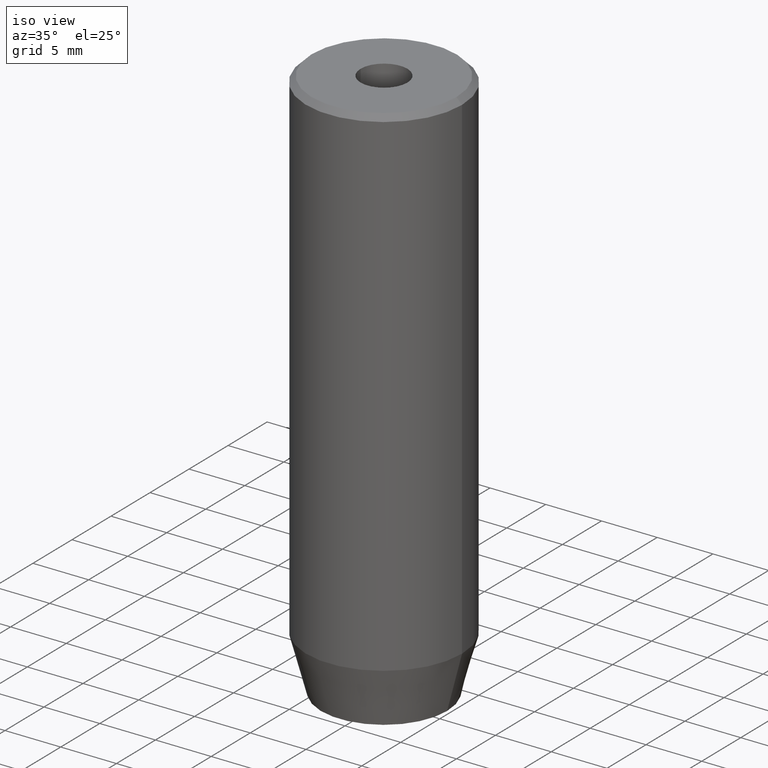
[diagram: clean part render]
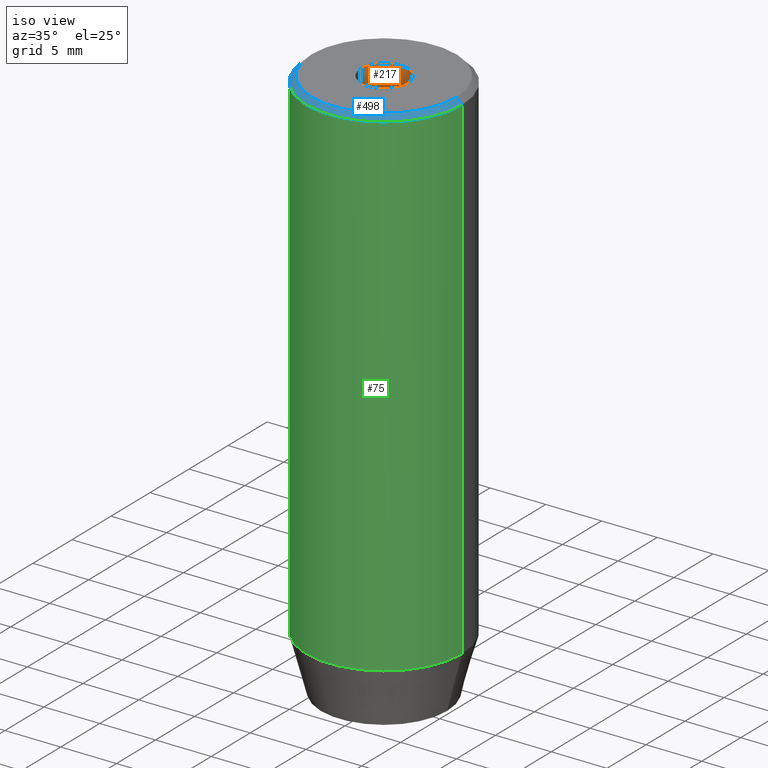
[diagram: same view with three faces highlighted in distinct colors, each labeled with its STEP entity id]
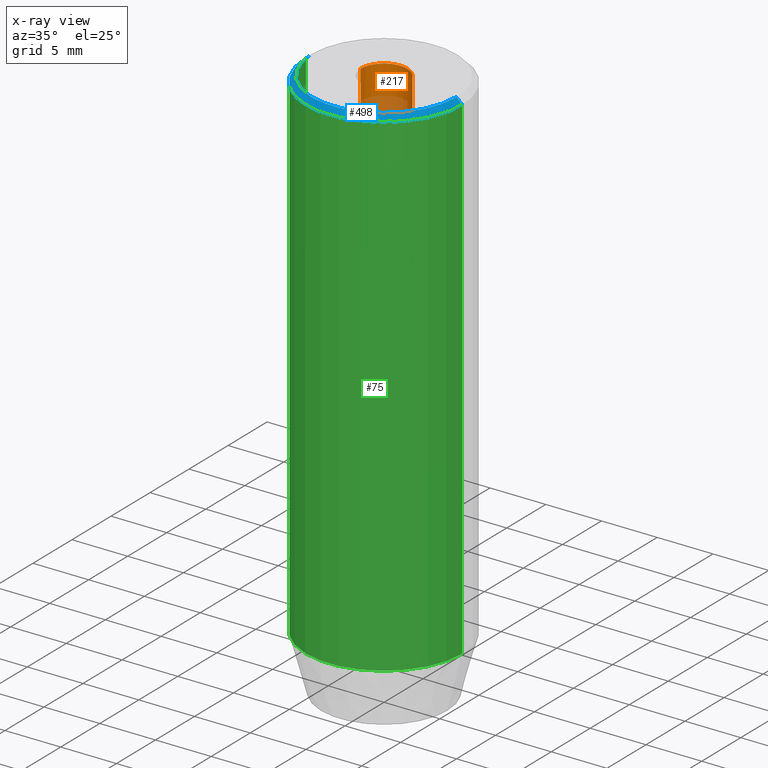
[diagram: x-ray of the same camera — body ghosted, the three highlighted faces saturated]
A machine part, iso view with three faces highlighted in distinct colors.
The next image is the same camera in x-ray (body ghosted, the three faces saturated) — at least one of them is partly hidden behind the body in this view.
Their STEP definitions:

[orange] entity #217 — the highlighted cylindrical surface (edge-blend (fillet) strip) has radius 2.1 mm, axis along (-0, -0, 1).
#10 = CARTESIAN_POINT ( 'NONE',  ( 2.099999999999997868, 0.000000000000000000, 0.000000000000000000 ) ) ;
#25 = DIRECTION ( 'NONE',  ( 1.000000000000000000, 0.000000000000000000, 0.000000000000000000 ) ) ;
#26 = ORIENTED_EDGE ( 'NONE', *, *, #364, .F. ) ;
#44 = VERTEX_POINT ( 'NONE', #253 ) ;
#48 = VERTEX_POINT ( 'NONE', #439 ) ;
#57 = VECTOR ( 'NONE', #93, 1000.000000000000000 ) ;
#74 = CARTESIAN_POINT ( 'NONE',  ( 0.000000000000000000, 0.000000000000000000, -15.00000000000000000 ) ) ;
#78 = DIRECTION ( 'NONE',  ( 1.000000000000000000, 0.000000000000000000, 0.000000000000000000 ) ) ;
#93 = DIRECTION ( 'NONE',  ( -0.000000000000000000, -0.000000000000000000, 1.000000000000000000 ) ) ;
#99 = DIRECTION ( 'NONE',  ( 1.000000000000000000, 0.000000000000000000, 0.000000000000000000 ) ) ;
#116 = CARTESIAN_POINT ( 'NONE',  ( -2.099999999999997868, 2.571758278209438999E-16, 0.000000000000000000 ) ) ;
#142 = FACE_OUTER_BOUND ( 'NONE', #263, .T. ) ;
#143 = AXIS2_PLACEMENT_3D ( 'NONE', #74, #487, #78 ) ;
#147 = LINE ( 'NONE', #10, #57 ) ;
#159 = DIRECTION ( 'NONE',  ( -0.000000000000000000, -0.000000000000000000, 1.000000000000000000 ) ) ;
#191 = CYLINDRICAL_SURFACE ( 'NONE', #435, 2.099999999999997868 ) ;
#217 = ADVANCED_FACE ( 'NONE', ( #142 ), #191, .F. ) ;
#243 = DIRECTION ( 'NONE',  ( -0.000000000000000000, -0.000000000000000000, 1.000000000000000000 ) ) ;
#250 = LINE ( 'NONE', #116, #502 ) ;
#253 = CARTESIAN_POINT ( 'NONE',  ( 2.099999999999998757, 0.000000000000000000, -1.990051048614449116E-16 ) ) ;
#263 = EDGE_LOOP ( 'NONE', ( #489, #26, #292, #320 ) ) ;
#275 = VERTEX_POINT ( 'NONE', #398 ) ;
#292 = ORIENTED_EDGE ( 'NONE', *, *, #522, .T. ) ;
#316 = AXIS2_PLACEMENT_3D ( 'NONE', #475, #243, #25 ) ;
#320 = ORIENTED_EDGE ( 'NONE', *, *, #547, .T. ) ;
#324 = EDGE_CURVE ( 'NONE', #48, #553, #250, .T. ) ;
#364 = EDGE_CURVE ( 'NONE', #275, #48, #385, .T. ) ;
#385 = CIRCLE ( 'NONE', #143, 2.099999999999996980 ) ;
#398 = CARTESIAN_POINT ( 'NONE',  ( 2.099999999999996980, 0.000000000000000000, -15.00000000000000000 ) ) ;
#428 = CARTESIAN_POINT ( 'NONE',  ( -2.099999999999998757, 2.571758278209439985E-16, -1.990051048614449116E-16 ) ) ;
#435 = AXIS2_PLACEMENT_3D ( 'NONE', #470, #508, #99 ) ;
#439 = CARTESIAN_POINT ( 'NONE',  ( -2.099999999999996980, 2.571758278209438013E-16, -15.00000000000000000 ) ) ;
#449 = CIRCLE ( 'NONE', #316, 2.099999999999998757 ) ;
#470 = CARTESIAN_POINT ( 'NONE',  ( 0.000000000000000000, 0.000000000000000000, 0.000000000000000000 ) ) ;
#475 = CARTESIAN_POINT ( 'NONE',  ( 0.000000000000000000, 0.000000000000000000, -1.990051048614449116E-16 ) ) ;
#487 = DIRECTION ( 'NONE',  ( -0.000000000000000000, -0.000000000000000000, 1.000000000000000000 ) ) ;
#489 = ORIENTED_EDGE ( 'NONE', *, *, #324, .F. ) ;
#502 = VECTOR ( 'NONE', #159, 1000.000000000000000 ) ;
#508 = DIRECTION ( 'NONE',  ( -0.000000000000000000, -0.000000000000000000, 1.000000000000000000 ) ) ;
#522 = EDGE_CURVE ( 'NONE', #275, #44, #147, .T. ) ;
#547 = EDGE_CURVE ( 'NONE', #44, #553, #449, .T. ) ;
#553 = VERTEX_POINT ( 'NONE', #428 ) ;

[blue] entity #498 — the highlighted conical surface has half-angle 45 deg.
#2 = EDGE_LOOP ( 'NONE', ( #227, #334, #571, #514 ) ) ;
#56 = AXIS2_PLACEMENT_3D ( 'NONE', #241, #418, #559 ) ;
#66 = CARTESIAN_POINT ( 'NONE',  ( -6.499999999999999112, 0.000000000000000000, 0.000000000000000000 ) ) ;
#84 = EDGE_CURVE ( 'NONE', #267, #376, #218, .T. ) ;
#96 = EDGE_CURVE ( 'NONE', #376, #517, #251, .T. ) ;
#115 = EDGE_CURVE ( 'NONE', #410, #267, #530, .T. ) ;
#138 = EDGE_CURVE ( 'NONE', #410, #517, #150, .T. ) ;
#139 = CARTESIAN_POINT ( 'NONE',  ( 0.000000000000000000, 0.000000000000000000, -0.5000000000000048850 ) ) ;
#146 = DIRECTION ( 'NONE',  ( 0.000000000000000000, 0.000000000000000000, -1.000000000000000000 ) ) ;
#150 = LINE ( 'NONE', #66, #359 ) ;
#164 = CARTESIAN_POINT ( 'NONE',  ( -6.499999999999999112, 0.000000000000000000, 0.000000000000000000 ) ) ;
#176 = CARTESIAN_POINT ( 'NONE',  ( 0.000000000000000000, 0.000000000000000000, 0.000000000000000000 ) ) ;
#218 = LINE ( 'NONE', #492, #586 ) ;
#225 = AXIS2_PLACEMENT_3D ( 'NONE', #176, #543, #268 ) ;
#227 = ORIENTED_EDGE ( 'NONE', *, *, #84, .F. ) ;
#229 = AXIS2_PLACEMENT_3D ( 'NONE', #139, #146, #377 ) ;
#241 = CARTESIAN_POINT ( 'NONE',  ( 0.000000000000000000, 0.000000000000000000, 0.000000000000000000 ) ) ;
#251 = CIRCLE ( 'NONE', #229, 7.000000000000000000 ) ;
#267 = VERTEX_POINT ( 'NONE', #533 ) ;
#268 = DIRECTION ( 'NONE',  ( -1.000000000000000000, 0.000000000000000000, 0.000000000000000000 ) ) ;
#334 = ORIENTED_EDGE ( 'NONE', *, *, #115, .F. ) ;
#359 = VECTOR ( 'NONE', #554, 1000.000000000000000 ) ;
#375 = CARTESIAN_POINT ( 'NONE',  ( -7.000000000000000000, 8.572527594031473190E-16, -0.5000000000000048850 ) ) ;
#376 = VERTEX_POINT ( 'NONE', #521 ) ;
#377 = DIRECTION ( 'NONE',  ( 1.000000000000000000, 0.000000000000000000, 0.000000000000000000 ) ) ;
#404 = FACE_OUTER_BOUND ( 'NONE', #2, .T. ) ;
#410 = VERTEX_POINT ( 'NONE', #164 ) ;
#418 = DIRECTION ( 'NONE',  ( -0.000000000000000000, -0.000000000000000000, 1.000000000000000000 ) ) ;
#492 = CARTESIAN_POINT ( 'NONE',  ( 6.499999999999999112, 7.960204194457794491E-16, 0.000000000000000000 ) ) ;
#498 = ADVANCED_FACE ( 'NONE', ( #404 ), #587, .T. ) ;
#514 = ORIENTED_EDGE ( 'NONE', *, *, #96, .F. ) ;
#517 = VERTEX_POINT ( 'NONE', #375 ) ;
#521 = CARTESIAN_POINT ( 'NONE',  ( 7.000000000000000000, 0.000000000000000000, -0.5000000000000048850 ) ) ;
#530 = CIRCLE ( 'NONE', #56, 6.499999999999999112 ) ;
#533 = CARTESIAN_POINT ( 'NONE',  ( 6.499999999999999112, 8.266365894244633347E-16, 0.000000000000000000 ) ) ;
#543 = DIRECTION ( 'NONE',  ( 0.000000000000000000, 0.000000000000000000, -1.000000000000000000 ) ) ;
#554 = DIRECTION ( 'NONE',  ( -0.7071067811865450192, 0.000000000000000000, -0.7071067811865500152 ) ) ;
#559 = DIRECTION ( 'NONE',  ( 1.000000000000000000, 0.000000000000000000, 0.000000000000000000 ) ) ;
#571 = ORIENTED_EDGE ( 'NONE', *, *, #138, .T. ) ;
#580 = DIRECTION ( 'NONE',  ( 0.7071067811865450192, 8.659560562354902043E-17, -0.7071067811865500152 ) ) ;
#586 = VECTOR ( 'NONE', #580, 1000.000000000000000 ) ;
#587 = CONICAL_SURFACE ( 'NONE', #225, 6.499999999999999112, 0.7853981633974447263 ) ;

[green] entity #75 — the highlighted cylindrical surface (partial cylindrical patch) has radius 7 mm, axis along (-0, -0, 1).
#75 = ADVANCED_FACE ( 'NONE', ( #213 ), #308, .T. ) ;
#81 = DIRECTION ( 'NONE',  ( 1.000000000000000000, 0.000000000000000000, 0.000000000000000000 ) ) ;
#96 = EDGE_CURVE ( 'NONE', #376, #517, #251, .T. ) ;
#98 = ORIENTED_EDGE ( 'NONE', *, *, #290, .T. ) ;
#101 = CARTESIAN_POINT ( 'NONE',  ( -7.000000000000000000, 8.572527594031473190E-16, 0.000000000000000000 ) ) ;
#106 = ORIENTED_EDGE ( 'NONE', *, *, #96, .T. ) ;
#124 = CARTESIAN_POINT ( 'NONE',  ( 0.000000000000000000, 0.000000000000000000, 0.000000000000000000 ) ) ;
#125 = EDGE_CURVE ( 'NONE', #384, #148, #350, .T. ) ;
#139 = CARTESIAN_POINT ( 'NONE',  ( 0.000000000000000000, 0.000000000000000000, -0.5000000000000048850 ) ) ;
#146 = DIRECTION ( 'NONE',  ( 0.000000000000000000, 0.000000000000000000, -1.000000000000000000 ) ) ;
#148 = VERTEX_POINT ( 'NONE', #464 ) ;
#213 = FACE_OUTER_BOUND ( 'NONE', #572, .T. ) ;
#229 = AXIS2_PLACEMENT_3D ( 'NONE', #139, #146, #377 ) ;
#251 = CIRCLE ( 'NONE', #229, 7.000000000000000000 ) ;
#290 = EDGE_CURVE ( 'NONE', #148, #376, #564, .T. ) ;
#308 = CYLINDRICAL_SURFACE ( 'NONE', #509, 7.000000000000000000 ) ;
#330 = CARTESIAN_POINT ( 'NONE',  ( 0.000000000000000000, 0.000000000000000000, -45.00000000000000711 ) ) ;
#335 = AXIS2_PLACEMENT_3D ( 'NONE', #330, #372, #561 ) ;
#340 = ORIENTED_EDGE ( 'NONE', *, *, #125, .T. ) ;
#350 = CIRCLE ( 'NONE', #335, 7.000000000000000000 ) ;
#351 = VECTOR ( 'NONE', #526, 1000.000000000000000 ) ;
#353 = CARTESIAN_POINT ( 'NONE',  ( 7.000000000000000000, 0.000000000000000000, 0.000000000000000000 ) ) ;
#366 = VECTOR ( 'NONE', #480, 1000.000000000000000 ) ;
#372 = DIRECTION ( 'NONE',  ( -0.000000000000000000, -0.000000000000000000, 1.000000000000000000 ) ) ;
#375 = CARTESIAN_POINT ( 'NONE',  ( -7.000000000000000000, 8.572527594031473190E-16, -0.5000000000000048850 ) ) ;
#376 = VERTEX_POINT ( 'NONE', #521 ) ;
#377 = DIRECTION ( 'NONE',  ( 1.000000000000000000, 0.000000000000000000, 0.000000000000000000 ) ) ;
#384 = VERTEX_POINT ( 'NONE', #440 ) ;
#440 = CARTESIAN_POINT ( 'NONE',  ( -7.000000000000000000, 8.572527594031473190E-16, -45.00000000000000711 ) ) ;
#446 = DIRECTION ( 'NONE',  ( -0.000000000000000000, -0.000000000000000000, 1.000000000000000000 ) ) ;
#464 = CARTESIAN_POINT ( 'NONE',  ( 7.000000000000000000, 0.000000000000000000, -45.00000000000000711 ) ) ;
#467 = ORIENTED_EDGE ( 'NONE', *, *, #541, .F. ) ;
#480 = DIRECTION ( 'NONE',  ( -0.000000000000000000, -0.000000000000000000, 1.000000000000000000 ) ) ;
#509 = AXIS2_PLACEMENT_3D ( 'NONE', #124, #446, #81 ) ;
#511 = LINE ( 'NONE', #101, #351 ) ;
#517 = VERTEX_POINT ( 'NONE', #375 ) ;
#521 = CARTESIAN_POINT ( 'NONE',  ( 7.000000000000000000, 0.000000000000000000, -0.5000000000000048850 ) ) ;
#526 = DIRECTION ( 'NONE',  ( -0.000000000000000000, -0.000000000000000000, 1.000000000000000000 ) ) ;
#541 = EDGE_CURVE ( 'NONE', #384, #517, #511, .T. ) ;
#561 = DIRECTION ( 'NONE',  ( 1.000000000000000000, 0.000000000000000000, 0.000000000000000000 ) ) ;
#564 = LINE ( 'NONE', #353, #366 ) ;
#572 = EDGE_LOOP ( 'NONE', ( #467, #340, #98, #106 ) ) ;